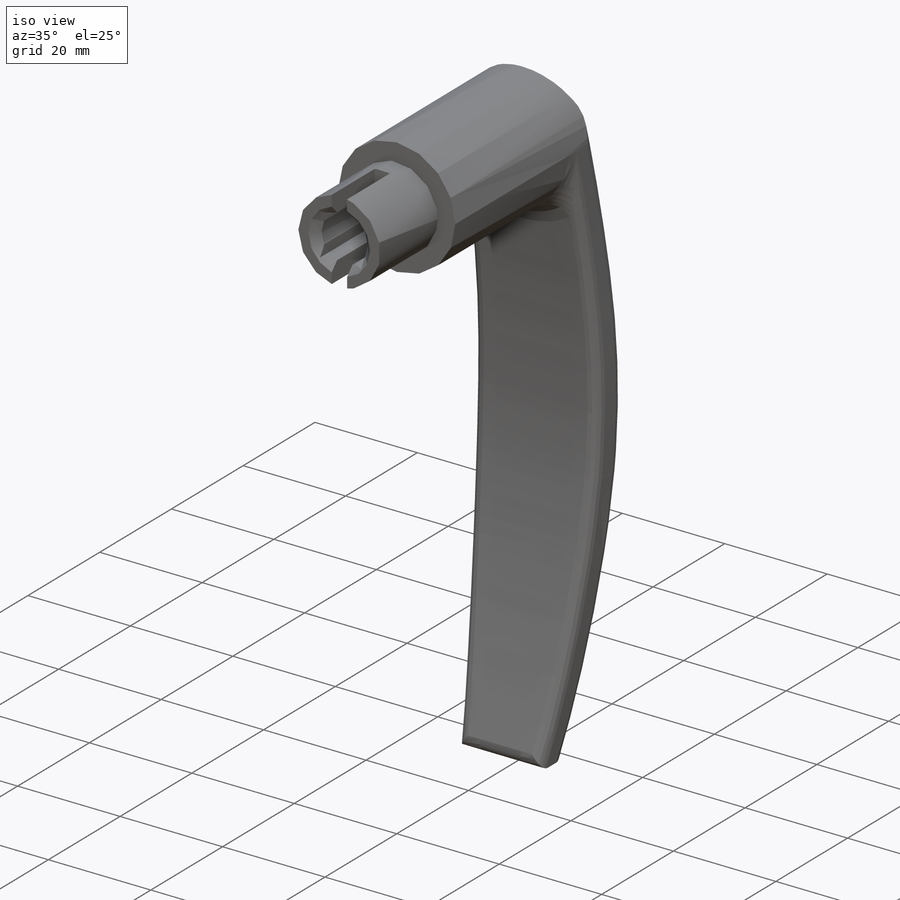
[diagram: iso view]
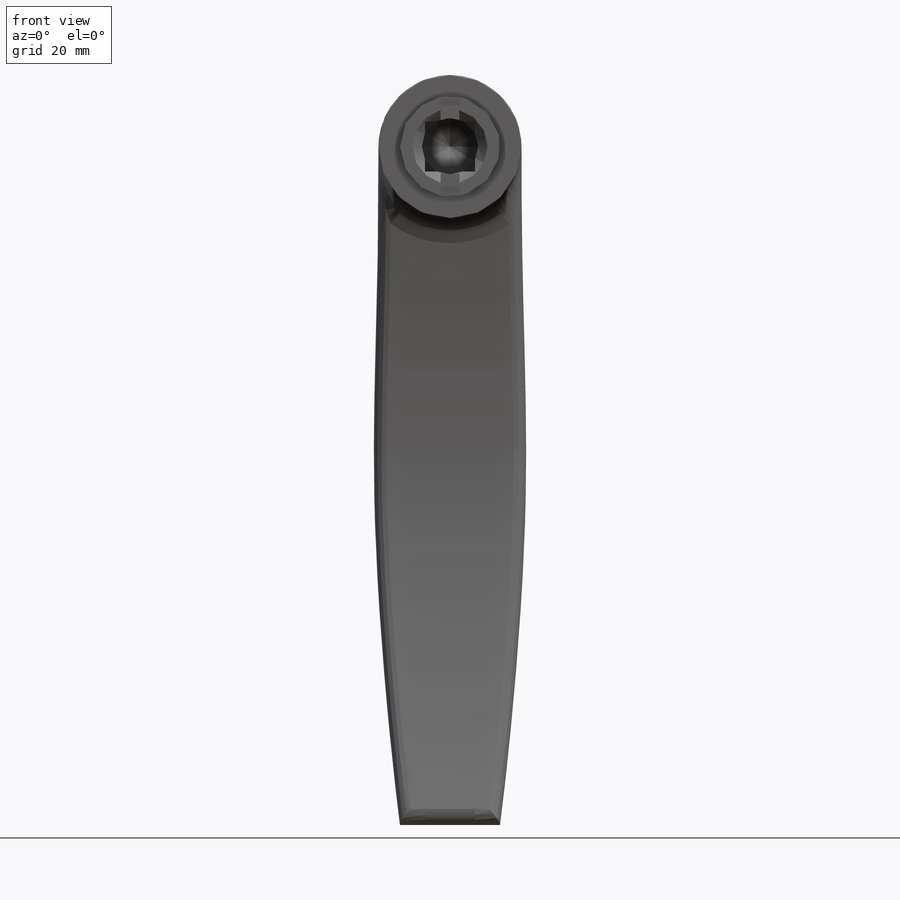
[diagram: front view]
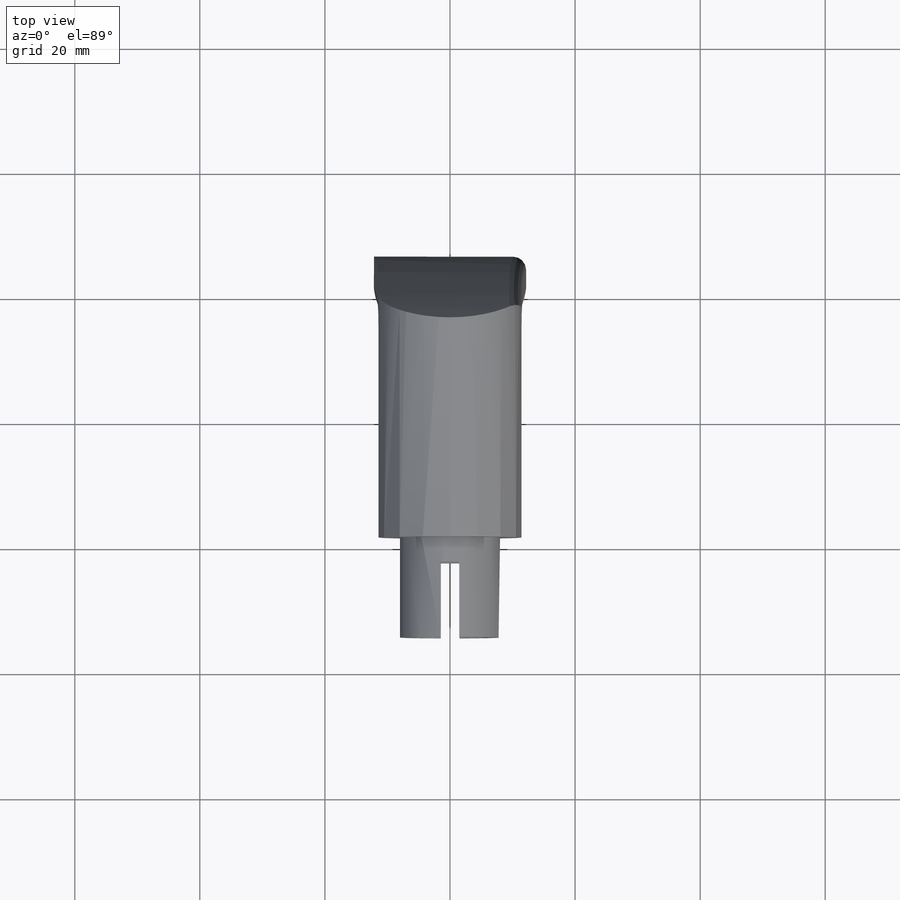
[diagram: top view]
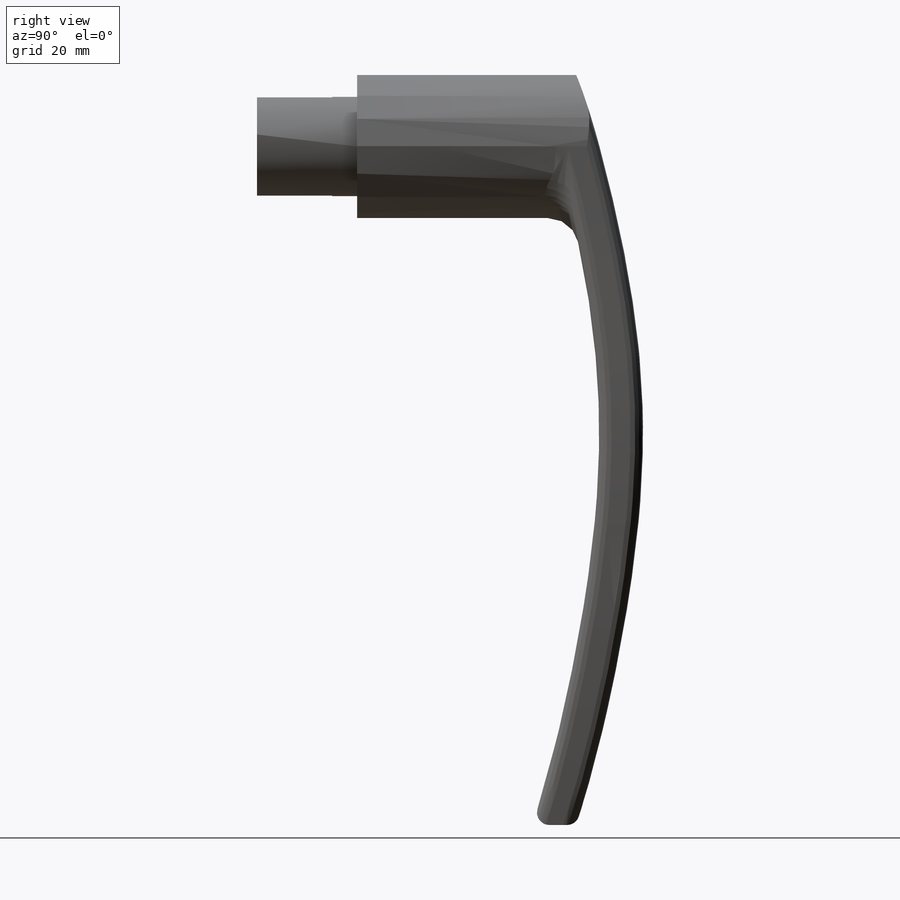
[diagram: right view]
SOLIDWORKS PART (.sldprt)
format: sldprt  version: not decoded by parser v0  size: 761,856 bytes
history: native  units: mm
features: sketch x13, extrude x12, plane x10, fillet x10, cut_extrude x3, hole x3, material x1 (+12 scaffold rows collapsed)
feature tree (64):
  scaffold x12  (default folders/planes/origin — collapsed)
  material  "Alliage 1060"
  plane  "Face"
  plane  "Dessus"
  plane  "Droite"
  plane  "Plan1"  Offset=11.5mm
  plane  "Plan3"  Offset=71.5mm
  plane  "Plan4"  Offset=120mm
  plane  "Plan6"  Offset=25mm
  sketch  "Esquisse3"  dims[c1.D1=7.0mm c1.D2=0.5mm c1.D3=0.5mm c2.D1=7.0mm c2.D4=22.0mm c2.D5=23.0mm c3.D4=~7.017834mm c3.D3=23.0mm c4.D4=11.0mm c4.D2=11.0mm c4.D5=~28.000196mm c4.D6=~7.017834mm c5.D2=11.5mm]
  sketch  "Esquisse7"  dims[c1.D1=7.0mm c1.D2=24.0mm c1.D3=24.0mm c2.D3=90.0deg c3.D3=~40.003002mm c4.D3=90.0deg c5.D3=10.0mm c5.D4=0.5mm c5.D2=0.5mm c5.D1=7.0mm c5.D5=38.0mm c5.D6=45.0mm c6.D5=12.0mm c6.D6=24.0mm c6.D7=25.0mm c6.D2=~1.86484mm c7.D2=~169.168157deg c8.D2=1.0mm c8.D4=1.0mm c8.D5=12.5mm c8.D1=7.0mm c9.D2=~38.000196mm]
  sketch  "Esquisse8"  dims[c1.D1=7.0mm c1.D2=16.0mm c1.D3=0.5mm c1.D4=0.5mm c2.D1=7.0mm c2.D5=8.0mm c2.D3=16.0mm c2.D4=~28.000196mm]
  sketch  "Esquisse17"  dims[D1=23.0mm D2=35.0mm D3=7.0mm]
  sketch  "Esquisse1"  dims[D1=~22.873044mm D2=~0.299348mm]
  extrude  "Extrusion7"  [1 undecoded]
  plane  "Plan5"  Offset=35mm
  sketch  "Esquisse12"  dims[D1=16.0mm D2=~22.873044mm]
  extrude  "Extrusion8"  Depth=16mm
  sketch  "Esquisse13"  dims[D1=3.0mm D2=40.0mm]
  cut_extrude  "Enlèv. mat.-Extru.1"  Depth=12mm
  hole  "Diamètre du perçage Ø9.0 (9)1"  Diameter=9mm Depth=40mm
  sketch  "Esquisse15"
  sketch  "Esquisse14"  dims[hole-wizard template sketch: 39 standard entries collapsed; hole parameters kept: c13.Diamètre du perçage=9.0mm c13.Profondeur du perçage=40.0mm c13.Diamètre du fraisage entrant=12.0mm c13.D4=~33.297463mm c13.Angle du fraisage entrant=90.0deg c14.D5=~14.816244mm c14.Angle de pointe=118.0deg]
  sketch  "Esquisse16"  dims[c1.D1=8.0mm c1.D2=~13.856406mm c2.D1=8.0mm]
  cut_extrude  "Enlèv. mat.-Extru.2"  Depth=35mm
  sketch  "Esquisse18"  dims[D1=~11.436522mm]
  cut_extrude  "Enlèv. mat.-Extru.3"  Depth=50mm
  fillet  "Congé36"  Radius=2mm
  hole  "Congé37"  Diameter=2mm
  hole  "Congé38"  Diameter=5mm
  plane  "Plan7"  Offset=60mm
  sketch  "Esquisse19"
  plane  "Plan8"
  sketch  "Esquisse20"  dims[c1.D1=~2.908935mm c1.D2=0.5mm c1.D3=~2.908935mm c2.D2=0.5mm c2.D3=0.25mm]
  extrude  "Extrusion9"  Depth=0.01mm faceID=23
  extrude  "faceID"  [1 undecoded]
  fillet  "FaceIDTag-24"  [1 undecoded]
  extrude  "faceID"  [1 undecoded]
  fillet  "FaceIDTag-26"  [1 undecoded]
  extrude  "faceID"  [1 undecoded]
  fillet  "FaceIDTag-27"  [1 undecoded]
  extrude  "faceID"  [1 undecoded]
  fillet  "FaceIDTag-29"  [1 undecoded]
  extrude  "faceID"  [1 undecoded]
  fillet  "FaceIDTag-30"  [1 undecoded]
  extrude  "faceID"  [1 undecoded]
  fillet  "FaceIDTag-33"  [1 undecoded]
  extrude  "faceID"  [1 undecoded]
  fillet  "FaceIDTag-34"  [1 undecoded]
  extrude  "faceID"  [1 undecoded]
  fillet  "FaceIDTag-51"  [1 undecoded]
  extrude  "faceID"  [1 undecoded]
  fillet  "3ff9a077-37be-4de2-9cea-d27397314fc3"  Radius=0mm ModelUUID=0mm Boundary Conditions Data=0 UUID=0mm
decode coverage: 21 of 41 modeling features carry decoded parameters
note: ~ marks probable driven/reference dimensions
note: 18 parameter values undecoded
summary: no parameter record found for 18 features
note: suppression state not decoded; provenance and decode notes live in map.json
